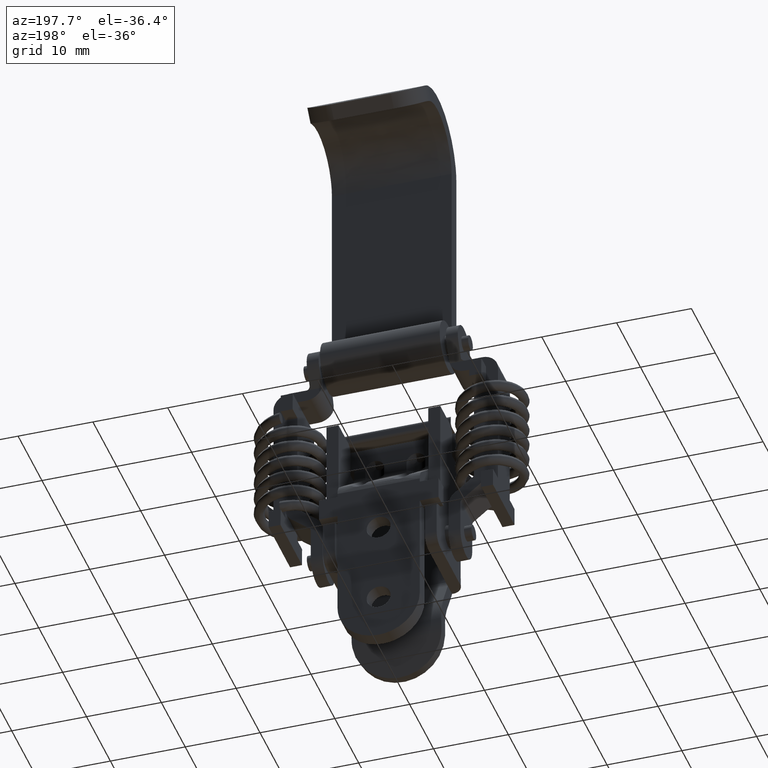
[diagram: clean part render]
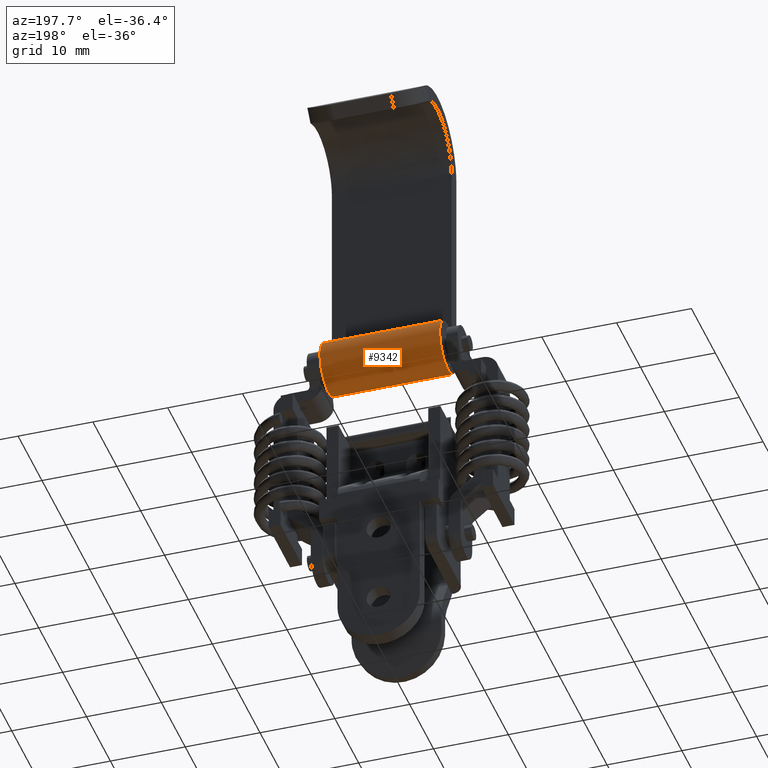
[diagram: same view with one face highlighted and labeled with its STEP entity id]
A machine part, auxiliary view. The second image highlights one B-rep face of the part: STEP entity #9342.
In plain terms, the highlighted face is a freeform B-spline surface patch.
Its self-contained STEP definition (entity closure, byte-faithful):
#8901=CARTESIAN_POINT('',(8.0,-4.499999999999956,0.000000549778721));
#8902=VERTEX_POINT('',#8901);
#8908=CARTESIAN_POINT('',(8.0,-2.490000000000000,3.167001736658820));
#8909=VERTEX_POINT('',#8908);
#8910=CARTESIAN_POINT('',(8.0,-4.499999999999956,0.000000549778721));
#8911=CARTESIAN_POINT('',(8.000000000000002,-4.500138929424191,-0.328724136438160));
#8912=CARTESIAN_POINT('',(7.999999999999962,-4.416663000058339,-0.915631901155477));
#8913=CARTESIAN_POINT('',(8.000000000000060,-4.091431056188503,-1.701474713235681));
#8914=CARTESIAN_POINT('',(7.999999999999933,-3.683168878336586,-2.280794671491926));
#8915=CARTESIAN_POINT('',(8.000000000000078,-3.190713276128760,-2.754265063851776));
#8916=CARTESIAN_POINT('',(7.999999999999936,-2.816819295110332,-3.001757851438025));
#8917=CARTESIAN_POINT('',(8.000000000000007,-2.576567650096071,-3.125062760330905));
#8918=CARTESIAN_POINT('',(8.000000000000002,-2.534285016011153,-3.145495159918339));
#8919=CARTESIAN_POINT('',(8.0,-2.502765324242117,-3.161221077093944));
#8920=CARTESIAN_POINT('',(8.0,-2.470664126034937,-3.175722693095695));
#8921=CARTESIAN_POINT('',(8.0,-2.438818963903305,-3.190739513799372));
#8922=CARTESIAN_POINT('',(8.0,-2.395863836235832,-3.209692364661644));
#8923=CARTESIAN_POINT('',(8.0,-2.352752411398321,-3.228296215619819));
#8924=CARTESIAN_POINT('',(8.0,-2.309122389731856,-3.245681102278584));
#8925=CARTESIAN_POINT('',(8.0,-2.276567853400075,-3.259143304215048));
#8926=CARTESIAN_POINT('',(8.0,-2.243515138126758,-3.271330361484568));
#8927=CARTESIAN_POINT('',(8.0,-2.210713619417843,-3.284178257740407));
#8928=CARTESIAN_POINT('',(8.0,-2.177421851281471,-3.295695688476283));
#8929=CARTESIAN_POINT('',(8.0,-2.144368517352980,-3.307878649170483));
#8930=CARTESIAN_POINT('',(8.000000000000030,-2.110856977388365,-3.318739442589444));
#8931=CARTESIAN_POINT('',(8.000000000000453,-2.077534196967839,-3.330121319565042));
#8932=CARTESIAN_POINT('',(7.999999999992744,-1.842590654468416,-3.404796785542529));
#8933=CARTESIAN_POINT('',(8.000000000007866,-1.600253192916662,-3.455767013170902));
#8934=CARTESIAN_POINT('',(7.999999999999252,-1.355134072686682,-3.482043027915168));
#8935=CARTESIAN_POINT('',(7.999999999999914,-1.320057203509979,-3.485092997865631));
#8936=CARTESIAN_POINT('',(8.000000000000002,-1.273307631616622,-3.489522178760999));
#8937=CARTESIAN_POINT('',(8.000000000000032,-0.933679386633163,-3.513867232207230));
#8938=CARTESIAN_POINT('',(8.000000000000149,-0.413961842398703,-3.477569958265795));
#8939=CARTESIAN_POINT('',(7.999999999999886,0.332990320290772,-3.262193458152348));
#8940=CARTESIAN_POINT('',(7.999999999999946,0.940728470950331,-2.944252520765960));
#8941=CARTESIAN_POINT('',(8.000000000000039,1.339640085564601,-2.612708735164531));
#8942=CARTESIAN_POINT('',(7.999999999999990,1.512545959550970,-2.436948696801626));
#8943=CARTESIAN_POINT('',(7.999999999999998,1.544659105936738,-2.402681176762622));
#8944=CARTESIAN_POINT('',(8.0,1.569073749146069,-2.377287494221076));
#8945=CARTESIAN_POINT('',(8.0,1.592475198864999,-2.350958277728274));
#8946=CARTESIAN_POINT('',(8.0,1.616399857923206,-2.325103414875290));
#8947=CARTESIAN_POINT('',(8.0,1.639264652914369,-2.298306900141575));
#8948=CARTESIAN_POINT('',(8.0,1.662662215361680,-2.271974960534855));
#8949=CARTESIAN_POINT('',(8.0,1.684999493129593,-2.244737238962023));
#8950=CARTESIAN_POINT('',(8.0,1.707770051225675,-2.217881896169159));
#8951=CARTESIAN_POINT('',(8.0,1.737225560650318,-2.181320040111055));
#8952=CARTESIAN_POINT('',(8.0,1.766384748383196,-2.144516496374723));
#8953=CARTESIAN_POINT('',(8.0,1.794501041503737,-2.106896063580393));
#8954=CARTESIAN_POINT('',(8.0,1.815954290642078,-2.078952161232936));
#8955=CARTESIAN_POINT('',(8.0,1.836305334916204,-2.050196134249176));
#8956=CARTESIAN_POINT('',(8.0,1.857227372918642,-2.021853678992242));
#8957=CARTESIAN_POINT('',(7.999999999992785,1.877057237410926,-1.992737124167131));
#8958=CARTESIAN_POINT('',(8.000000000026235,1.910546861931838,-1.944541361486477));
#8959=CARTESIAN_POINT('',(7.999999999976177,1.942613071953206,-1.895397776270877));
#8960=CARTESIAN_POINT('',(8.000000000008711,1.973900300407132,-1.845764208674105));
#8961=CARTESIAN_POINT('',(7.999999999998258,1.991967695223434,-1.815548054062478));
#8962=CARTESIAN_POINT('',(8.0,2.010523918348857,-1.785605254292530));
#8963=CARTESIAN_POINT('',(8.0,2.027882583977609,-1.754952822850738));
#8964=CARTESIAN_POINT('',(8.0,2.045853357951888,-1.724654048750816));
#8965=CARTESIAN_POINT('',(8.0,2.062590487912373,-1.693656325021871));
#8966=CARTESIAN_POINT('',(8.0,2.079946418722569,-1.663000489191658));
#8967=CARTESIAN_POINT('',(8.0,2.096071572842271,-1.631678615589579));
#8968=CARTESIAN_POINT('',(7.999999999999997,2.112665136331467,-1.600622611390596));
#8969=CARTESIAN_POINT('',(8.000000000000023,2.272259488454421,-1.286622893597988));
#8970=CARTESIAN_POINT('',(7.999999999999941,2.441921954266539,-0.780783262020312));
#8971=CARTESIAN_POINT('',(8.000000000000096,2.514290131287212,-0.077790594472930));
#8972=CARTESIAN_POINT('',(7.999999999999770,2.481317305767183,0.486586806717718));
#8973=CARTESIAN_POINT('',(8.000000000000622,2.342904391293271,1.107371068872058));
#8974=CARTESIAN_POINT('',(7.999999999999450,2.154396419382995,1.540615890886184));
#8975=CARTESIAN_POINT('',(8.000000000000037,2.005694945919010,1.793698133610644));
#8976=CARTESIAN_POINT('',(8.0,1.980947373599607,1.833608680791349));
#8977=CARTESIAN_POINT('',(8.0,1.962762011826267,1.863776707238626));
#8978=CARTESIAN_POINT('',(8.0,1.943421306282176,1.893217496481474));
#8979=CARTESIAN_POINT('',(8.0,1.930903457279710,1.913084383812010));
#8980=CARTESIAN_POINT('',(8.0,1.827735443079768,2.070014315507291));
#8981=CARTESIAN_POINT('',(8.0,1.719878872297571,2.209826084088265));
#8982=CARTESIAN_POINT('',(8.0,1.594265241435576,2.349440755135887));
#8983=CARTESIAN_POINT('',(8.0,1.578225684868611,2.366591157310980));
#8984=CARTESIAN_POINT('',(8.0,1.554658094523276,2.392772953537679));
#8985=CARTESIAN_POINT('',(8.0,1.530066127417808,2.417994570650505));
#8986=CARTESIAN_POINT('',(8.0,1.505984556836889,2.443705315070288));
#8987=CARTESIAN_POINT('',(8.0,1.480887595749268,2.468426418026030));
#8988=CARTESIAN_POINT('',(8.0,1.456291596390139,2.493646358798023));
#8989=CARTESIAN_POINT('',(8.0,1.430709288929541,2.517866837665200));
#8990=CARTESIAN_POINT('',(8.0,1.413954358745510,2.534315218418881));
#8991=CARTESIAN_POINT('',(8.0,1.158220972642817,2.776519236586861));
#8992=CARTESIAN_POINT('',(8.0,0.682151985196842,3.110224740503166));
#8993=CARTESIAN_POINT('',(8.0,-0.078322636348061,3.401032922490269));
#8994=CARTESIAN_POINT('',(8.0,-0.916499754780675,3.539800248228119));
#8995=CARTESIAN_POINT('',(8.0,-1.531984012785652,3.479901249860955));
#8996=CARTESIAN_POINT('',(8.0,-1.906496679763901,3.380557096875271));
#8997=CARTESIAN_POINT('',(8.0,-1.929078831087095,3.374143086457128));
#8998=CARTESIAN_POINT('',(8.0,-1.963127934023134,3.365116184602853));
#8999=CARTESIAN_POINT('',(8.0,-1.996795810145482,3.354757754015813));
#9000=CARTESIAN_POINT('',(8.000000000000078,-2.019366336749209,3.348280034886284));
#9001=CARTESIAN_POINT('',(7.999999999999287,-2.187644809360735,3.296445033759309));
#9002=CARTESIAN_POINT('',(8.000000000001439,-2.341296114379998,3.236970550160364));
#9003=CARTESIAN_POINT('',(8.0,-2.490000000000000,3.167001736658820));
#9004=B_SPLINE_CURVE_WITH_KNOTS('',3,(#8910,#8911,#8912,#8913,#8914,#8915,#8916,#8917,#8918,#8919,#8920,#8921,#8922,#8923,#8924,#8925,#8926,#8927,#8928,#8929,#8930,#8931,#8932,#8933,#8934,#8935,#8936,#8937,#8938,#8939,#8940,#8941,#8942,#8943,#8944,#8945,#8946,#8947,#8948,#8949,#8950,#8951,#8952,#8953,#8954,#8955,#8956,#8957,#8958,#8959,#8960,#8961,#8962,#8963,#8964,#8965,#8966,#8967,#8968,#8969,#8970,#8971,#8972,#8973,#8974,#8975,#8976,#8977,#8978,#8979,#8980,#8981,#8982,#8983,#8984,#8985,#8986,#8987,#8988,#8989,#8990,#8991,#8992,#8993,#8994,#8995,#8996,#8997,#8998,#8999,#9000,#9001,#9002,#9003),.UNSPECIFIED.,.F.,.U.,(4,1,1,1,1,1,1,1,1,1,1,1,1,1,1,1,1,1,1,1,1,1,1,1,1,1,1,1,1,1,1,1,1,1,1,1,1,1,1,1,1,1,1,1,1,1,1,1,1,1,1,1,1,1,1,1,1,1,1,1,1,1,1,1,1,1,1,1,2,2,1,1,1,1,1,1,1,2,1,1,1,2,1,1,1,2,4),(0.000406848139310,0.986535431317588,1.761374584137673,2.536214084271951,3.099729947362272,3.804142094523142,3.874584194218489,3.909805075052145,3.945025955885802,3.980246527450147,4.015467099014474,4.050648288980497,4.121094059378700,4.156318513796657,4.191542968214597,4.226767177470038,4.261991386725500,4.297215063007664,4.332438739289820,4.367661538214154,4.402884337138463,4.438077244791048,5.107228945815542,5.142413735216003,5.177634104122575,5.212854473029141,5.283295380496844,6.199023028217354,6.762546132320427,7.607824249267132,8.241776846362177,8.312221493086259,8.347443779022060,8.382666064957842,8.417888164884353,8.453110264810858,8.488331995154697,8.523553725498550,8.558774863597597,8.593996001696661,8.629180126720668,8.699623665021615,8.734849383162743,8.770075101303885,8.805300013959844,8.840524926615835,8.875748616764103,8.910972306912406,9.016590452855485,9.051762886238461,9.086984568729655,9.122206251220883,9.157429366417244,9.192652481613605,9.227876595321455,9.263100709029292,9.298325450422224,9.333550191815119,9.368742508857539,10.354928453082790,10.918440082014920,11.481952079363760,12.045463321887549,12.820318392340459,12.890761306987081,12.925982591226990,12.961203875466900,12.996424831065260,13.031645786663629,13.559852290768990,13.595073973108610,13.630295655448229,13.665518770511881,13.700741885575530,13.735965999168480,13.771190112761429,13.806414854056200,13.841639595350960,14.863017857085620,15.567407641699980,16.271797758308718,17.398850711225240,17.434071995523080,17.469293279820921,17.504514235489019,17.539735191157131,18.032769265448991),.UNSPECIFIED.);
#9005=EDGE_CURVE('',#8902,#8909,#9004,.T.);
#9129=CARTESIAN_POINT('',(-8.0,-2.490000000000000,3.167001736658820));
#9130=VERTEX_POINT('',#9129);
#9136=CARTESIAN_POINT('',(-8.0,-4.499999999999956,0.000000549778721));
#9137=VERTEX_POINT('',#9136);
#9138=CARTESIAN_POINT('',(-8.0,-4.499999999999956,0.000000549778721));
#9139=CARTESIAN_POINT('',(-8.000000000000002,-4.500138929424191,-0.328724136438160));
#9140=CARTESIAN_POINT('',(-7.999999999999962,-4.416663000058339,-0.915631901155477));
#9141=CARTESIAN_POINT('',(-8.000000000000060,-4.091431056188503,-1.701474713235681));
#9142=CARTESIAN_POINT('',(-7.999999999999933,-3.683168878336586,-2.280794671491926));
#9143=CARTESIAN_POINT('',(-8.000000000000078,-3.190713276128760,-2.754265063851776));
#9144=CARTESIAN_POINT('',(-7.999999999999936,-2.816819295110332,-3.001757851438025));
#9145=CARTESIAN_POINT('',(-8.000000000000007,-2.576567650096071,-3.125062760330905));
#9146=CARTESIAN_POINT('',(-8.000000000000002,-2.534285016011153,-3.145495159918339));
#9147=CARTESIAN_POINT('',(-8.0,-2.502765324242117,-3.161221077093944));
#9148=CARTESIAN_POINT('',(-8.0,-2.470664126034937,-3.175722693095695));
#9149=CARTESIAN_POINT('',(-8.0,-2.438818963903305,-3.190739513799372));
#9150=CARTESIAN_POINT('',(-8.0,-2.395863836235832,-3.209692364661644));
#9151=CARTESIAN_POINT('',(-8.0,-2.352752411398321,-3.228296215619819));
#9152=CARTESIAN_POINT('',(-8.0,-2.309122389731856,-3.245681102278584));
#9153=CARTESIAN_POINT('',(-8.0,-2.276567853400075,-3.259143304215048));
#9154=CARTESIAN_POINT('',(-8.0,-2.243515138126758,-3.271330361484568));
#9155=CARTESIAN_POINT('',(-8.0,-2.210713619417843,-3.284178257740407));
#9156=CARTESIAN_POINT('',(-8.0,-2.177421851281471,-3.295695688476283));
#9157=CARTESIAN_POINT('',(-8.0,-2.144368517352980,-3.307878649170483));
#9158=CARTESIAN_POINT('',(-8.000000000000030,-2.110856977388365,-3.318739442589444));
#9159=CARTESIAN_POINT('',(-8.000000000000453,-2.077534196967839,-3.330121319565042));
#9160=CARTESIAN_POINT('',(-7.999999999992744,-1.842590654468416,-3.404796785542529));
#9161=CARTESIAN_POINT('',(-8.000000000007866,-1.600253192916662,-3.455767013170902));
#9162=CARTESIAN_POINT('',(-7.999999999999252,-1.355134072686682,-3.482043027915168));
#9163=CARTESIAN_POINT('',(-7.999999999999914,-1.320057203509979,-3.485092997865631));
#9164=CARTESIAN_POINT('',(-8.000000000000002,-1.273307631616622,-3.489522178760999));
#9165=CARTESIAN_POINT('',(-8.000000000000032,-0.933679386633163,-3.513867232207230));
#9166=CARTESIAN_POINT('',(-8.000000000000149,-0.413961842398703,-3.477569958265795));
#9167=CARTESIAN_POINT('',(-7.999999999999886,0.332990320290772,-3.262193458152348));
#9168=CARTESIAN_POINT('',(-7.999999999999946,0.940728470950331,-2.944252520765960));
#9169=CARTESIAN_POINT('',(-8.000000000000039,1.339640085564601,-2.612708735164531));
#9170=CARTESIAN_POINT('',(-7.999999999999990,1.512545959550970,-2.436948696801626));
#9171=CARTESIAN_POINT('',(-7.999999999999998,1.544659105936738,-2.402681176762622));
#9172=CARTESIAN_POINT('',(-8.0,1.569073749146069,-2.377287494221076));
#9173=CARTESIAN_POINT('',(-8.0,1.592475198864999,-2.350958277728274));
#9174=CARTESIAN_POINT('',(-8.0,1.616399857923206,-2.325103414875290));
#9175=CARTESIAN_POINT('',(-8.0,1.639264652914369,-2.298306900141575));
#9176=CARTESIAN_POINT('',(-8.0,1.662662215361680,-2.271974960534855));
#9177=CARTESIAN_POINT('',(-8.0,1.684999493129593,-2.244737238962023));
#9178=CARTESIAN_POINT('',(-8.0,1.707770051225675,-2.217881896169159));
#9179=CARTESIAN_POINT('',(-8.0,1.737225560650318,-2.181320040111055));
#9180=CARTESIAN_POINT('',(-8.0,1.766384748383196,-2.144516496374723));
#9181=CARTESIAN_POINT('',(-8.0,1.794501041503737,-2.106896063580393));
#9182=CARTESIAN_POINT('',(-8.0,1.815954290642078,-2.078952161232936));
#9183=CARTESIAN_POINT('',(-8.0,1.836305334916204,-2.050196134249176));
#9184=CARTESIAN_POINT('',(-8.0,1.857227372918642,-2.021853678992242));
#9185=CARTESIAN_POINT('',(-7.999999999992785,1.877057237410926,-1.992737124167131));
#9186=CARTESIAN_POINT('',(-8.000000000026235,1.910546861931838,-1.944541361486477));
#9187=CARTESIAN_POINT('',(-7.999999999976177,1.942613071953206,-1.895397776270877));
#9188=CARTESIAN_POINT('',(-8.000000000008711,1.973900300407132,-1.845764208674105));
#9189=CARTESIAN_POINT('',(-7.999999999998258,1.991967695223434,-1.815548054062478));
#9190=CARTESIAN_POINT('',(-8.0,2.010523918348857,-1.785605254292530));
#9191=CARTESIAN_POINT('',(-8.0,2.027882583977609,-1.754952822850738));
#9192=CARTESIAN_POINT('',(-8.0,2.045853357951888,-1.724654048750816));
#9193=CARTESIAN_POINT('',(-8.0,2.062590487912373,-1.693656325021871));
#9194=CARTESIAN_POINT('',(-8.0,2.079946418722569,-1.663000489191658));
#9195=CARTESIAN_POINT('',(-8.0,2.096071572842271,-1.631678615589579));
#9196=CARTESIAN_POINT('',(-7.999999999999997,2.112665136331467,-1.600622611390596));
#9197=CARTESIAN_POINT('',(-8.000000000000023,2.272259488454421,-1.286622893597988));
#9198=CARTESIAN_POINT('',(-7.999999999999941,2.441921954266539,-0.780783262020312));
#9199=CARTESIAN_POINT('',(-8.000000000000096,2.514290131287212,-0.077790594472930));
#9200=CARTESIAN_POINT('',(-7.999999999999770,2.481317305767183,0.486586806717718));
#9201=CARTESIAN_POINT('',(-8.000000000000622,2.342904391293271,1.107371068872058));
#9202=CARTESIAN_POINT('',(-7.999999999999450,2.154396419382995,1.540615890886184));
#9203=CARTESIAN_POINT('',(-8.000000000000037,2.005694945919010,1.793698133610644));
#9204=CARTESIAN_POINT('',(-8.0,1.980947373599607,1.833608680791349));
#9205=CARTESIAN_POINT('',(-8.0,1.962762011826267,1.863776707238626));
#9206=CARTESIAN_POINT('',(-8.0,1.943421306282176,1.893217496481474));
#9207=CARTESIAN_POINT('',(-8.0,1.930903457279710,1.913084383812010));
#9208=CARTESIAN_POINT('',(-8.0,1.827735443079768,2.070014315507291));
#9209=CARTESIAN_POINT('',(-8.0,1.719878872297571,2.209826084088265));
#9210=CARTESIAN_POINT('',(-8.0,1.594265241435576,2.349440755135887));
#9211=CARTESIAN_POINT('',(-8.0,1.578225684868611,2.366591157310980));
#9212=CARTESIAN_POINT('',(-8.0,1.554658094523276,2.392772953537679));
#9213=CARTESIAN_POINT('',(-8.0,1.530066127417808,2.417994570650505));
#9214=CARTESIAN_POINT('',(-8.0,1.505984556836889,2.443705315070288));
#9215=CARTESIAN_POINT('',(-8.0,1.480887595749268,2.468426418026030));
#9216=CARTESIAN_POINT('',(-8.0,1.456291596390139,2.493646358798023));
#9217=CARTESIAN_POINT('',(-8.0,1.430709288929541,2.517866837665200));
#9218=CARTESIAN_POINT('',(-8.0,1.413954358745510,2.534315218418881));
#9219=CARTESIAN_POINT('',(-8.0,1.158220972642817,2.776519236586861));
#9220=CARTESIAN_POINT('',(-8.0,0.682151985196842,3.110224740503166));
#9221=CARTESIAN_POINT('',(-8.0,-0.078322636348061,3.401032922490269));
#9222=CARTESIAN_POINT('',(-8.0,-0.916499754780675,3.539800248228119));
#9223=CARTESIAN_POINT('',(-8.0,-1.531984012785652,3.479901249860955));
#9224=CARTESIAN_POINT('',(-8.0,-1.906496679763901,3.380557096875271));
#9225=CARTESIAN_POINT('',(-8.0,-1.929078831087095,3.374143086457128));
#9226=CARTESIAN_POINT('',(-8.0,-1.963127934023134,3.365116184602853));
#9227=CARTESIAN_POINT('',(-8.0,-1.996795810145482,3.354757754015813));
#9228=CARTESIAN_POINT('',(-8.000000000000078,-2.019366336749209,3.348280034886284));
#9229=CARTESIAN_POINT('',(-7.999999999999287,-2.187644809360735,3.296445033759309));
#9230=CARTESIAN_POINT('',(-8.000000000001439,-2.341296114379998,3.236970550160364));
#9231=CARTESIAN_POINT('',(-8.0,-2.490000000000000,3.167001736658820));
#9232=B_SPLINE_CURVE_WITH_KNOTS('',3,(#9138,#9139,#9140,#9141,#9142,#9143,#9144,#9145,#9146,#9147,#9148,#9149,#9150,#9151,#9152,#9153,#9154,#9155,#9156,#9157,#9158,#9159,#9160,#9161,#9162,#9163,#9164,#9165,#9166,#9167,#9168,#9169,#9170,#9171,#9172,#9173,#9174,#9175,#9176,#9177,#9178,#9179,#9180,#9181,#9182,#9183,#9184,#9185,#9186,#9187,#9188,#9189,#9190,#9191,#9192,#9193,#9194,#9195,#9196,#9197,#9198,#9199,#9200,#9201,#9202,#9203,#9204,#9205,#9206,#9207,#9208,#9209,#9210,#9211,#9212,#9213,#9214,#9215,#9216,#9217,#9218,#9219,#9220,#9221,#9222,#9223,#9224,#9225,#9226,#9227,#9228,#9229,#9230,#9231),.UNSPECIFIED.,.F.,.U.,(4,1,1,1,1,1,1,1,1,1,1,1,1,1,1,1,1,1,1,1,1,1,1,1,1,1,1,1,1,1,1,1,1,1,1,1,1,1,1,1,1,1,1,1,1,1,1,1,1,1,1,1,1,1,1,1,1,1,1,1,1,1,1,1,1,1,1,1,2,2,1,1,1,1,1,1,1,2,1,1,1,2,1,1,1,2,4),(0.000406848139310,0.986535431317588,1.761374584137673,2.536214084271951,3.099729947362272,3.804142094523142,3.874584194218489,3.909805075052145,3.945025955885802,3.980246527450147,4.015467099014474,4.050648288980497,4.121094059378700,4.156318513796657,4.191542968214597,4.226767177470038,4.261991386725500,4.297215063007664,4.332438739289820,4.367661538214154,4.402884337138463,4.438077244791048,5.107228945815542,5.142413735216003,5.177634104122575,5.212854473029141,5.283295380496844,6.199023028217354,6.762546132320427,7.607824249267132,8.241776846362177,8.312221493086259,8.347443779022060,8.382666064957842,8.417888164884353,8.453110264810858,8.488331995154697,8.523553725498550,8.558774863597597,8.593996001696661,8.629180126720668,8.699623665021615,8.734849383162743,8.770075101303885,8.805300013959844,8.840524926615835,8.875748616764103,8.910972306912406,9.016590452855485,9.051762886238461,9.086984568729655,9.122206251220883,9.157429366417244,9.192652481613605,9.227876595321455,9.263100709029292,9.298325450422224,9.333550191815119,9.368742508857539,10.354928453082790,10.918440082014920,11.481952079363760,12.045463321887549,12.820318392340459,12.890761306987081,12.925982591226990,12.961203875466900,12.996424831065260,13.031645786663629,13.559852290768990,13.595073973108610,13.630295655448229,13.665518770511881,13.700741885575530,13.735965999168480,13.771190112761429,13.806414854056200,13.841639595350960,14.863017857085620,15.567407641699980,16.271797758308718,17.398850711225240,17.434071995523080,17.469293279820921,17.504514235489019,17.539735191157131,18.032769265448991),.UNSPECIFIED.);
#9233=EDGE_CURVE('',#9137,#9130,#9232,.T.);
#9302=CARTESIAN_POINT('',(-8.0,-4.499999999999956,0.000000549778721));
#9303=CARTESIAN_POINT('',(8.0,-4.499999999999956,0.000000549778721));
#9304=QUASI_UNIFORM_CURVE('',1,(#9302,#9303),.UNSPECIFIED.,.F.,.U.);
#9305=EDGE_CURVE('',#9137,#8902,#9304,.T.);
#9310=CARTESIAN_POINT('',(-8.400000000000000,-2.572391854965048,3.126912831282569));
#9311=CARTESIAN_POINT('',(8.410000000000000,-2.572391854965048,3.126912831282569));
#9312=CARTESIAN_POINT('',(-8.400000000000002,1.154117745444884,5.000816473403037));
#9313=CARTESIAN_POINT('',(8.410000000000000,1.154117745444884,5.000816473403037));
#9314=CARTESIAN_POINT('',(-8.400000000000000,2.352450979433432,1.005520974667268));
#9315=CARTESIAN_POINT('',(8.410000000000000,2.352450979433432,1.005520974667268));
#9316=CARTESIAN_POINT('',(-8.400000000000002,3.550784213421980,-2.989774524068501));
#9317=CARTESIAN_POINT('',(8.410000000000000,3.550784213421980,-2.989774524068501));
#9318=CARTESIAN_POINT('',(-8.400000000000000,-0.591902151627612,-3.476126600996261));
#9319=CARTESIAN_POINT('',(8.410000000000000,-0.591902151627612,-3.476126600996261));
#9320=CARTESIAN_POINT('',(-8.400000000000002,-4.734588516677205,-3.962478677924022));
#9321=CARTESIAN_POINT('',(8.410000000000000,-4.734588516677205,-3.962478677924022));
#9322=CARTESIAN_POINT('',(-8.400000000000000,-4.494181874792753,0.201725124537812));
#9323=CARTESIAN_POINT('',(8.410000000000000,-4.494181874792753,0.201725124537812));
#9331=(BOUNDED_SURFACE()B_SPLINE_SURFACE(1,2,((#9310,#9312,#9314,#9316,#9318,#9320,#9322),(#9311,#9313,#9315,#9317,#9319,#9321,#9323)),.UNSPECIFIED.,.F.,.F.,.U.)B_SPLINE_SURFACE_WITH_KNOTS((2,2),(3,2,2,3),(0.0,16.809999999999999),(0.0,6.528307214169977,13.056614428339950,19.584921642509929),.UNSPECIFIED.)GEOMETRIC_REPRESENTATION_ITEM()RATIONAL_B_SPLINE_SURFACE(((1.0,0.642787609686539,1.0,0.642787609686539,1.0,0.642787609686539,1.0),(1.0,0.642787609686539,1.0,0.642787609686539,1.0,0.642787609686539,1.0)))REPRESENTATION_ITEM('')SURFACE());
#9332=ORIENTED_EDGE('',*,*,#9005,.F.);
#9333=ORIENTED_EDGE('',*,*,#9305,.F.);
#9334=ORIENTED_EDGE('',*,*,#9233,.T.);
#9335=CARTESIAN_POINT('',(-8.0,-2.490000000000000,3.167001736658820));
#9336=CARTESIAN_POINT('',(8.0,-2.490000000000000,3.167001736658820));
#9337=QUASI_UNIFORM_CURVE('',1,(#9335,#9336),.UNSPECIFIED.,.F.,.U.);
#9338=EDGE_CURVE('',#9130,#8909,#9337,.T.);
#9339=ORIENTED_EDGE('',*,*,#9338,.T.);
#9340=EDGE_LOOP('',(#9332,#9333,#9334,#9339));
#9341=FACE_OUTER_BOUND('',#9340,.T.);
#9342=ADVANCED_FACE('',(#9341),#9331,.T.);